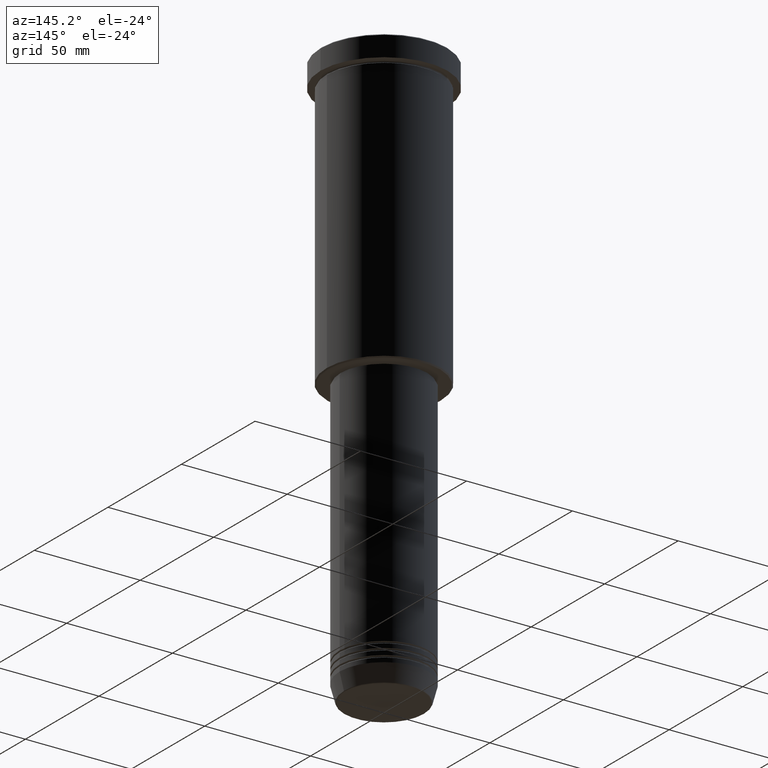
[diagram: clean part render]
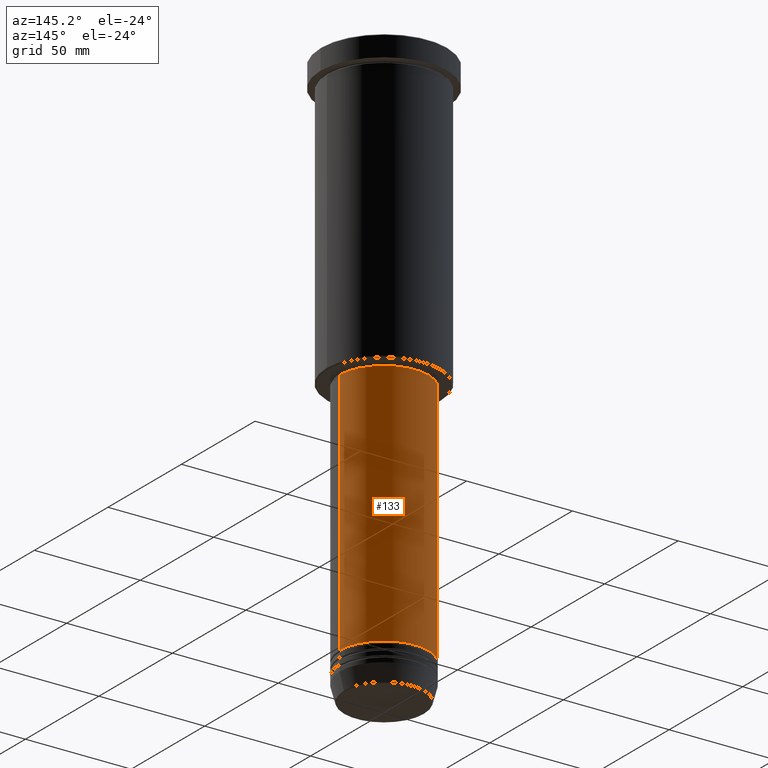
[diagram: same view with one face highlighted and labeled with its STEP entity id]
A machine part, auxiliary view. The second image highlights one B-rep face of the part: STEP entity #133.
In plain terms, the highlighted cylindrical surface (partial cylindrical patch) has radius 21 mm, axis along (-0, -0, 1).
Its self-contained STEP definition (entity closure, byte-faithful):
#3 = DIRECTION ( 'NONE',  ( 1.000000000000000000, 0.000000000000000000, 0.000000000000000000 ) ) ;
#78 = CARTESIAN_POINT ( 'NONE',  ( 0.000000000000000000, 0.000000000000000000, -137.0000000000000000 ) ) ;
#83 = LINE ( 'NONE', #716, #619 ) ;
#98 = AXIS2_PLACEMENT_3D ( 'NONE', #78, #466, #3 ) ;
#102 = ORIENTED_EDGE ( 'NONE', *, *, #1079, .F. ) ;
#119 = ORIENTED_EDGE ( 'NONE', *, *, #490, .F. ) ;
#133 = ADVANCED_FACE ( 'NONE', ( #1147 ), #1055, .T. ) ;
#164 = DIRECTION ( 'NONE',  ( -0.000000000000000000, -0.000000000000000000, 1.000000000000000000 ) ) ;
#185 = VERTEX_POINT ( 'NONE', #331 ) ;
#245 = AXIS2_PLACEMENT_3D ( 'NONE', #974, #164, #528 ) ;
#256 = CARTESIAN_POINT ( 'NONE',  ( 0.000000000000000000, 0.000000000000000000, -254.0000000000000000 ) ) ;
#320 = CARTESIAN_POINT ( 'NONE',  ( 21.00000000000000000, 0.000000000000000000, -137.0000000000000000 ) ) ;
#331 = CARTESIAN_POINT ( 'NONE',  ( -21.00000000000000000, 2.571758278209441661E-15, -137.0000000000000000 ) ) ;
#466 = DIRECTION ( 'NONE',  ( -0.000000000000000000, -0.000000000000000000, 1.000000000000000000 ) ) ;
#490 = EDGE_CURVE ( 'NONE', #945, #185, #579, .T. ) ;
#524 = VECTOR ( 'NONE', #994, 1000.000000000000000 ) ;
#528 = DIRECTION ( 'NONE',  ( 1.000000000000000000, 0.000000000000000000, 0.000000000000000000 ) ) ;
#532 = VERTEX_POINT ( 'NONE', #918 ) ;
#546 = CIRCLE ( 'NONE', #1098, 21.00000000000000000 ) ;
#559 = CARTESIAN_POINT ( 'NONE',  ( -21.00000000000000000, 2.571758278209441661E-15, 0.000000000000000000 ) ) ;
#575 = LINE ( 'NONE', #559, #524 ) ;
#579 = CIRCLE ( 'NONE', #98, 21.00000000000000000 ) ;
#619 = VECTOR ( 'NONE', #1144, 1000.000000000000000 ) ;
#622 = DIRECTION ( 'NONE',  ( 1.000000000000000000, 0.000000000000000000, 0.000000000000000000 ) ) ;
#684 = VERTEX_POINT ( 'NONE', #774 ) ;
#716 = CARTESIAN_POINT ( 'NONE',  ( 21.00000000000000000, 0.000000000000000000, 0.000000000000000000 ) ) ;
#774 = CARTESIAN_POINT ( 'NONE',  ( 21.00000000000000000, 0.000000000000000000, -254.0000000000000000 ) ) ;
#885 = EDGE_LOOP ( 'NONE', ( #1148, #919, #119, #102 ) ) ;
#918 = CARTESIAN_POINT ( 'NONE',  ( -21.00000000000000000, 2.571758278209441661E-15, -254.0000000000000000 ) ) ;
#919 = ORIENTED_EDGE ( 'NONE', *, *, #1168, .T. ) ;
#945 = VERTEX_POINT ( 'NONE', #320 ) ;
#974 = CARTESIAN_POINT ( 'NONE',  ( 0.000000000000000000, 0.000000000000000000, 0.000000000000000000 ) ) ;
#994 = DIRECTION ( 'NONE',  ( -0.000000000000000000, -0.000000000000000000, 1.000000000000000000 ) ) ;
#1055 = CYLINDRICAL_SURFACE ( 'NONE', #245, 21.00000000000000000 ) ;
#1057 = DIRECTION ( 'NONE',  ( -0.000000000000000000, -0.000000000000000000, 1.000000000000000000 ) ) ;
#1079 = EDGE_CURVE ( 'NONE', #684, #945, #83, .T. ) ;
#1098 = AXIS2_PLACEMENT_3D ( 'NONE', #256, #1057, #622 ) ;
#1144 = DIRECTION ( 'NONE',  ( -0.000000000000000000, -0.000000000000000000, 1.000000000000000000 ) ) ;
#1146 = EDGE_CURVE ( 'NONE', #684, #532, #546, .T. ) ;
#1147 = FACE_OUTER_BOUND ( 'NONE', #885, .T. ) ;
#1148 = ORIENTED_EDGE ( 'NONE', *, *, #1146, .T. ) ;
#1168 = EDGE_CURVE ( 'NONE', #532, #185, #575, .T. ) ;